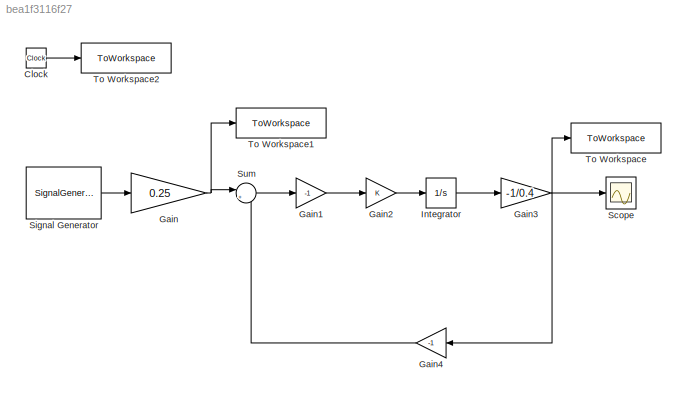
MODEL slx_bea1f3116f27
KIND model
CONFIG AbsTol = auto
CONFIG EnableMultiTasking = off
CONFIG FixedStep = auto
CONFIG MaxStep = 1e-3
CONFIG MinStep = 1e-4
CONFIG RelTol = 1e-4
CONFIG SampleTimeConstraint = Unconstrained
CONFIG SolverName = VariableStepAuto
CONFIG StartTime = 0.0
CONFIG StopTime = 100
BLOCK [Clock] Clock
BLOCK [Gain] Gain
  Gain = 0.25
BLOCK [Gain] Gain1
  Gain = -1
BLOCK [Gain] Gain2
BLOCK [Gain] Gain3
  Gain = -1/0.4
BLOCK [Gain] Gain4
  Gain = -1
  NameLocation = top
BLOCK [Integrator] Integrator
BLOCK [Scope] Scope
  Floating = off
  NumInputPorts = 1
  ScopeSpecificationString = Simulink.scopes.TimeScopeBlockCfg('CurrentConfiguration', extmgr.ConfigurationSet(extmgr.Configuration('Core','General UI',true),extmgr.Configuration('Core','Source UI',true),extmgr.Configuration('Sources','WiredSimulink',true),extmgr.Configuration('Visuals','Time Domain',true,'SerializedDisplays',{struct('MinYLimReal','-3.12499','MaxYLimReal','3.12498','YLabelReal','','MinYLimMag','0.00000','MaxY...<+1442ch>
BLOCK [SignalGenerator] Signal Generator
  Amplitude = 10
  Frequency = 0.1
  WaveForm = square
BLOCK [Sum] Sum
  Inputs = |++
BLOCK [ToWorkspace] To Workspace
  FixptAsFi = on
  MaxDataPoints = inf
  SampleTime = -1
  VariableName = output
BLOCK [ToWorkspace] To Workspace1
  FixptAsFi = on
  MaxDataPoints = inf
  SampleTime = -1
  VariableName = input
BLOCK [ToWorkspace] To Workspace2
  FixptAsFi = on
  MaxDataPoints = inf
  SampleTime = -1
  VariableName = time
LINE Clock:1 -> To Workspace2:1
LINE Gain1:1 -> Gain2:1
LINE Gain2:1 -> Integrator:1
NET Gain3:1 -> Gain4:1, Scope:1, To Workspace:1
LINE Gain4:1 -> Sum:2
NET Gain:1 -> Sum:1, To Workspace1:1
LINE Integrator:1 -> Gain3:1
LINE Signal Generator:1 -> Gain:1
LINE Sum:1 -> Gain1:1
note: NET lines group one-source signal fan-out (src -> all destinations, sorted); 1:1 wires keep LINE
